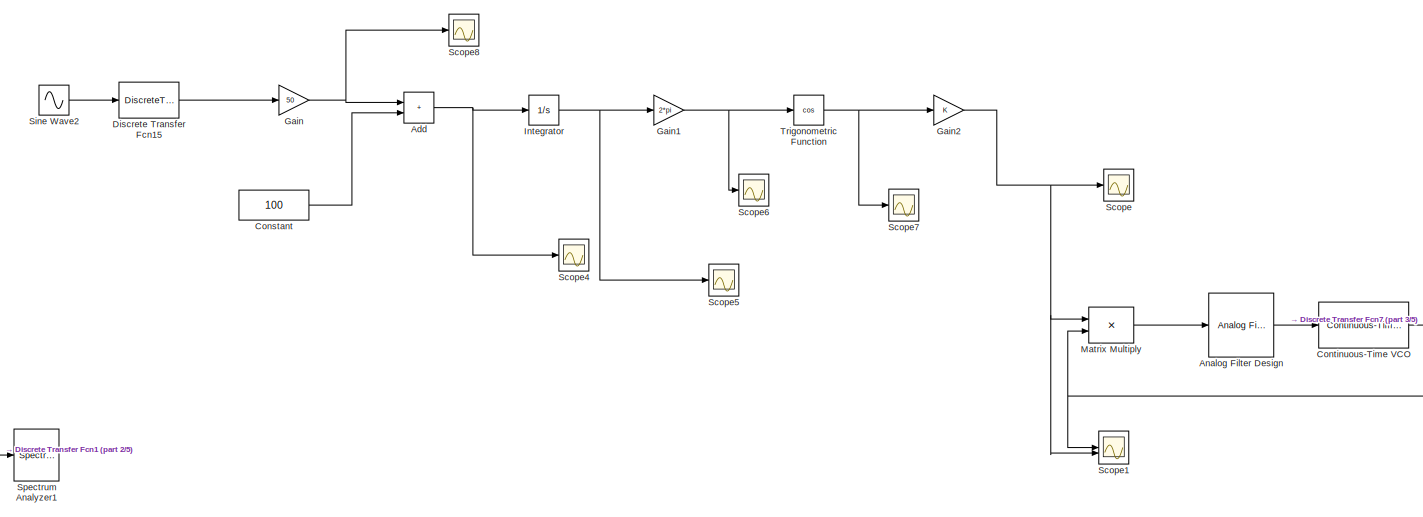
[diagram: root canvas - part 1/5, top center region]
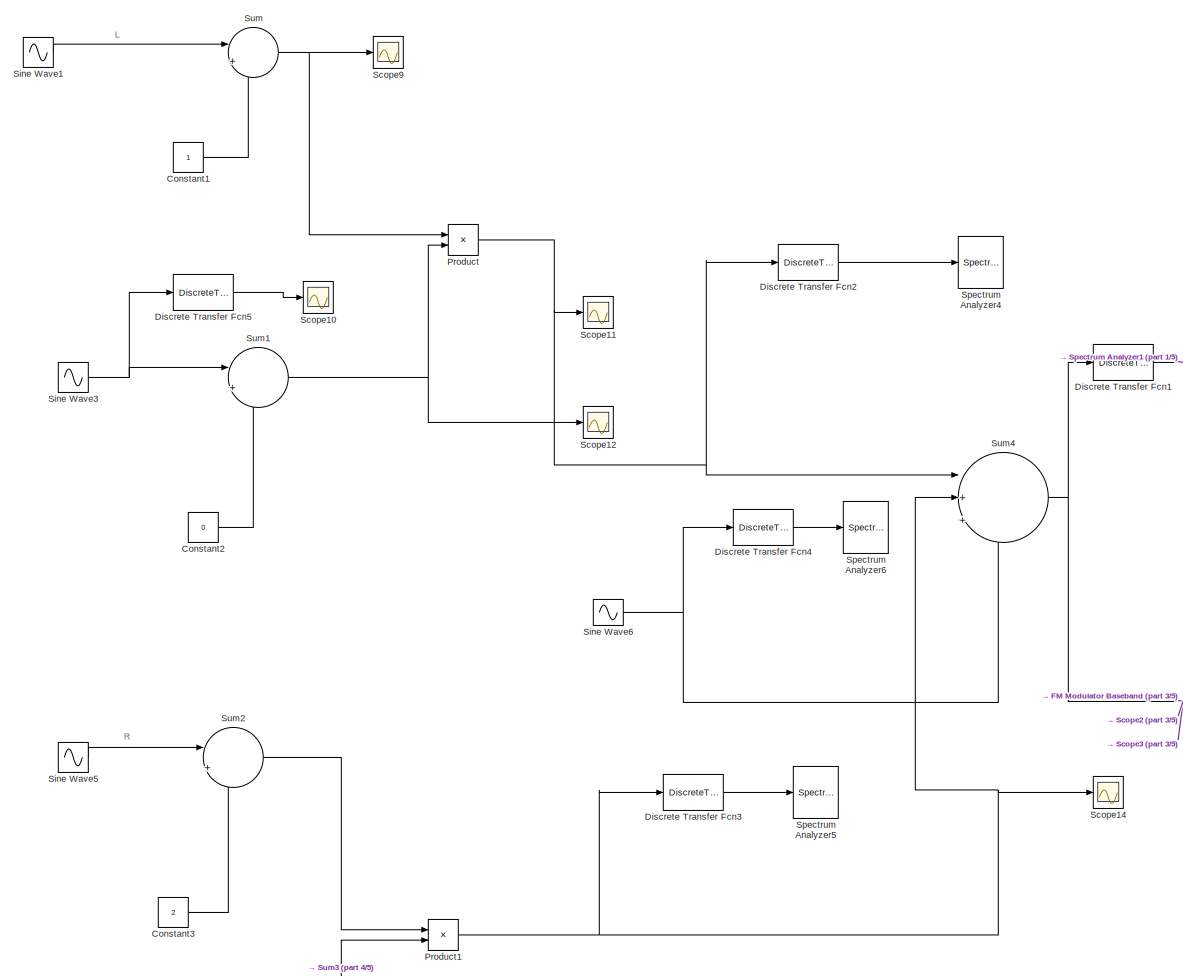
[diagram: root canvas - part 2/5, top left region]
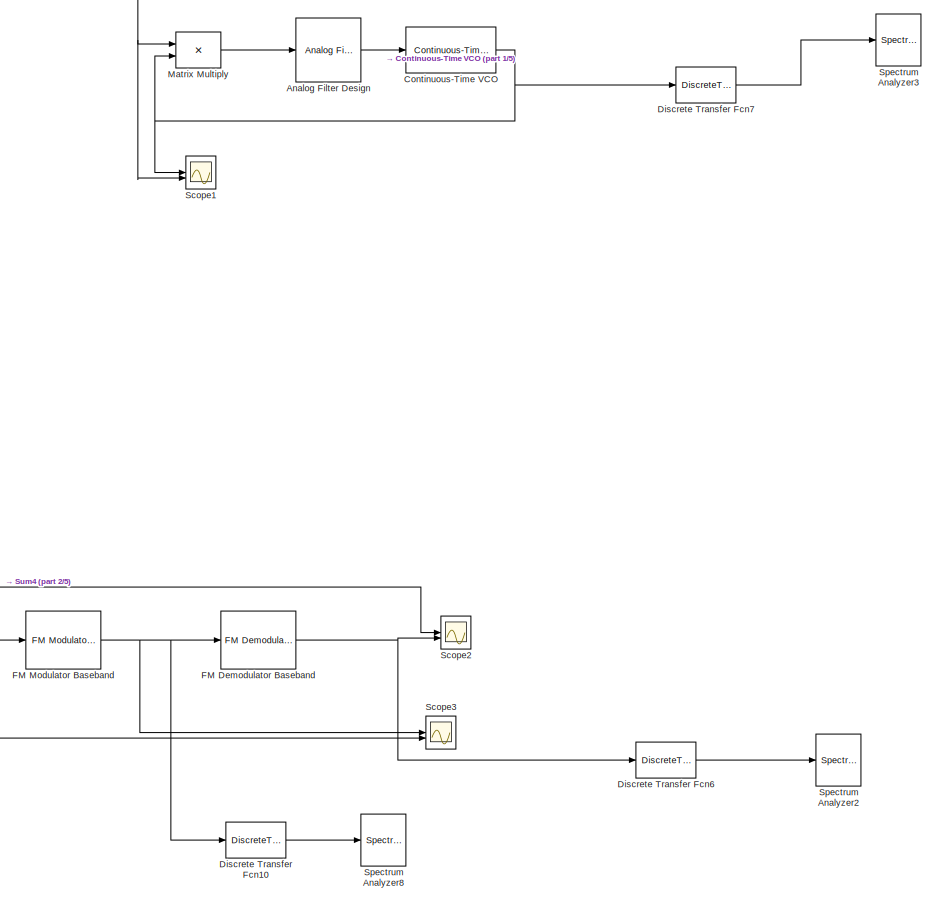
[diagram: root canvas - part 3/5, middle right region]
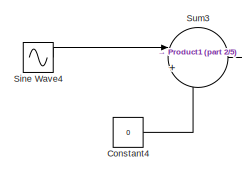
[diagram: root canvas - part 4/5, middle left region]
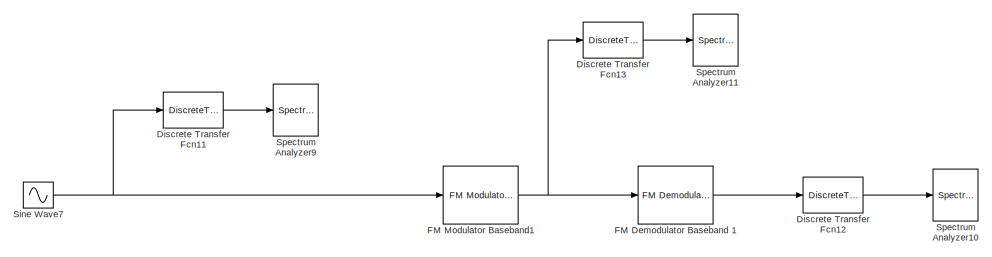
[diagram: root canvas - part 5/5, bottom right region]
MODEL slx_bea12ed6b8fe
KIND model
CONFIG AbsTol = auto
CONFIG EnableMultiTasking = off
CONFIG FixedStep = auto
CONFIG MaxStep = auto
CONFIG MinStep = auto
CONFIG RelTol = 1e-3
CONFIG SampleTimeConstraint = Unconstrained
CONFIG SolverName = VariableStepAuto
CONFIG StartTime = 0.0
CONFIG StopTime = 0.5
BLOCK [Sum] Add
  IconShape = rectangular
BLOCK [Reference] Analog Filter Design  REF=dspfdesign/Analog
Filter Design
  SourceBlock = dspfdesign/Analog\nFilter Design
  SourceType = Analog Filter Design
BLOCK [Constant] Constant
  Value = 100
  VectorParams1D = off
BLOCK [Constant] Constant1
BLOCK [Constant] Constant2
  Value = 0
BLOCK [Constant] Constant3
  Value = 2
BLOCK [Constant] Constant4
  Value = 0
BLOCK [Reference] Continuous-Time VCO  REF=commsynccomp2/Continuous-Time
VCO
  SourceBlock = commsynccomp2/Continuous-Time\nVCO
  SourceType = Continuous-Time VCO
BLOCK [DiscreteTransferFcn] Discrete Transfer Fcn1
  Denominator = [1]
  InputPortMap = u0
  SampleTime = 1/24e+6
BLOCK [DiscreteTransferFcn] Discrete Transfer Fcn10
  Denominator = [1]
  InputPortMap = u0
  SampleTime = 1/16e+6
BLOCK [DiscreteTransferFcn] Discrete Transfer Fcn11
  Denominator = [1]
  InputPortMap = u0
  SampleTime = 1/12e+6
BLOCK [DiscreteTransferFcn] Discrete Transfer Fcn12
  Denominator = [1]
  InputPortMap = u0
  SampleTime = 1/16e+6
BLOCK [DiscreteTransferFcn] Discrete Transfer Fcn13
  Denominator = [1]
  InputPortMap = u0
  SampleTime = 1/12e+6
BLOCK [DiscreteTransferFcn] Discrete Transfer Fcn15
  Denominator = [1]
  InputPortMap = u0
  SampleTime = 1/2*pi*100
BLOCK [DiscreteTransferFcn] Discrete Transfer Fcn2
  Denominator = [1]
  InputPortMap = u0
  SampleTime = 1/16e+6
BLOCK [DiscreteTransferFcn] Discrete Transfer Fcn3
  Denominator = [1]
  InputPortMap = u0
  SampleTime = 1/24e+6
BLOCK [DiscreteTransferFcn] Discrete Transfer Fcn4
  Denominator = [1]
  InputPortMap = u0
  SampleTime = 1/12e+6
BLOCK [DiscreteTransferFcn] Discrete Transfer Fcn5
  Denominator = [1]
  InputPortMap = u0
  SampleTime = 1/16e+6
BLOCK [DiscreteTransferFcn] Discrete Transfer Fcn6
  Denominator = [1]
  InputPortMap = u0
  SampleTime = 1/16e+6
BLOCK [DiscreteTransferFcn] Discrete Transfer Fcn7
  Denominator = [1]
  InputPortMap = u0
  SampleTime = 1/200
BLOCK [Reference] FM Demodulator Baseband   REF=commanabbnd3/FM
Demodulator
Baseband 
  SourceBlock = commanabbnd3/FM\nDemodulator\nBaseband
  SourceType = FM Demodulator Baseband
BLOCK [Reference] FM Demodulator Baseband 1  REF=commanabbnd3/FM
Demodulator
Baseband 
  SourceBlock = commanabbnd3/FM\nDemodulator\nBaseband
  SourceType = FM Demodulator Baseband
BLOCK [Reference] FM Modulator Baseband  REF=commanabbnd3/FM
Modulator
Baseband
  SourceBlock = commanabbnd3/FM\nModulator\nBaseband
  SourceType = FM Modulator Baseband
BLOCK [Reference] FM Modulator Baseband1  REF=commanabbnd3/FM
Modulator
Baseband
  SourceBlock = commanabbnd3/FM\nModulator\nBaseband
  SourceType = FM Modulator Baseband
BLOCK [Gain] Gain
  Gain = 50
BLOCK [Gain] Gain1
  Gain = 2*pi
BLOCK [Gain] Gain2
BLOCK [Integrator] Integrator
BLOCK [Product] Matrix Multiply
  Multiplication = Matrix(*)
BLOCK [Product] Product
BLOCK [Product] Product1
BLOCK [Scope] Scope
  Floating = off
  NumInputPorts = 1
  ScopeSpecificationString = Simulink.scopes.TimeScopeBlockCfg('CurrentConfiguration', extmgr.ConfigurationSet(extmgr.Configuration('Core','General UI',true),extmgr.Configuration('Core','Source UI',true),extmgr.Configuration('Sources','WiredSimulink',true),extmgr.Configuration('Visuals','Time Domain',true,'SerializedDisplays',{struct('MinYLimReal','-1.25','MaxYLimReal','1.25','YLabelReal','','MinYLimMag','0.00000','MaxYLimMag...<+1343ch>
BLOCK [Scope] Scope1
  Floating = off
  NumInputPorts = 2
  ScopeSpecificationString = Simulink.scopes.TimeScopeBlockCfg('CurrentConfiguration', extmgr.ConfigurationSet(extmgr.Configuration('Core','General UI',true),extmgr.Configuration('Core','Source UI',true),extmgr.Configuration('Sources','WiredSimulink',true,'DataLoggingVariableName','ScopeData1'),extmgr.Configuration('Visuals','Time Domain',true,'SerializedDisplays',{struct('MinYLimReal','-1.25','MaxYLimReal','1.25','YLabelReal...<+1399ch>
BLOCK [Scope] Scope10
  Floating = off
  NumInputPorts = 1
  ScopeSpecificationString = Simulink.scopes.TimeScopeBlockCfg('CurrentConfiguration', extmgr.ConfigurationSet(extmgr.Configuration('Core','General UI',true),extmgr.Configuration('Core','Source UI',true),extmgr.Configuration('Sources','WiredSimulink',true,'DataLoggingVariableName','ScopeData1'),extmgr.Configuration('Visuals','Time Domain',true,'SerializedDisplays',{struct('MinYLimReal','-1.25','MaxYLimReal','1.25','YLabelReal...<+1417ch>
BLOCK [Scope] Scope11
  Floating = off
  NumInputPorts = 1
  ScopeSpecificationString = Simulink.scopes.TimeScopeBlockCfg('CurrentConfiguration', extmgr.ConfigurationSet(extmgr.Configuration('Core','General UI',true),extmgr.Configuration('Core','Source UI',true),extmgr.Configuration('Sources','WiredSimulink',true,'DataLoggingVariableName','ScopeData2'),extmgr.Configuration('Visuals','Time Domain',true,'SerializedDisplays',{struct('MinYLimReal','-2.5','MaxYLimReal','2.5','YLabelReal',...<+1390ch>
BLOCK [Scope] Scope12
  Floating = off
  NumInputPorts = 1
  ScopeSpecificationString = Simulink.scopes.TimeScopeBlockCfg('CurrentConfiguration', extmgr.ConfigurationSet(extmgr.Configuration('Core','General UI',true),extmgr.Configuration('Core','Source UI',true),extmgr.Configuration('Sources','WiredSimulink',true,'DataLoggingVariableName','ScopeData3'),extmgr.Configuration('Visuals','Time Domain',true,'SerializedDisplays',{struct('MinYLimReal','-9.67988','MaxYLimReal','8.81549','YLab...<+1417ch>
BLOCK [Scope] Scope14
  Floating = off
  NumInputPorts = 1
  ScopeSpecificationString = Simulink.scopes.TimeScopeBlockCfg('CurrentConfiguration', extmgr.ConfigurationSet(extmgr.Configuration('Core','General UI',true),extmgr.Configuration('Core','Source UI',true),extmgr.Configuration('Sources','WiredSimulink',true,'DataLoggingVariableName','ScopeData5'),extmgr.Configuration('Visuals','Time Domain',true,'SerializedDisplays',{struct('MinYLimReal','-64.38624','MaxYLimReal','71.27468','YL...<+1392ch>
BLOCK [Scope] Scope2
  Floating = off
  NumInputPorts = 2
  ScopeSpecificationString = Simulink.scopes.TimeScopeBlockCfg('CurrentConfiguration', extmgr.ConfigurationSet(extmgr.Configuration('Core','General UI',true),extmgr.Configuration('Core','Source UI',true),extmgr.Configuration('Sources','WiredSimulink',true,'DataLoggingVariableName','ScopeData1'),extmgr.Configuration('Visuals','Time Domain',true,'SerializedDisplays',{struct('MinYLimReal','-1.2499','MaxYLimReal','1.2499','YLabel...<+1415ch>
BLOCK [Scope] Scope3
  Floating = off
  NumInputPorts = 2
  ScopeSpecificationString = Simulink.scopes.TimeScopeBlockCfg('CurrentConfiguration', extmgr.ConfigurationSet(extmgr.Configuration('Core','General UI',true),extmgr.Configuration('Core','Source UI',true),extmgr.Configuration('Sources','WiredSimulink',true,'DataLoggingVariableName','ScopeData2'),extmgr.Configuration('Visuals','Time Domain',true,'SerializedDisplays',{struct('MinYLimReal','-1.24991','MaxYLimReal','1.24999','YLab...<+1488ch>
BLOCK [Scope] Scope4
  Floating = off
  NumInputPorts = 1
  ScopeSpecificationString = Simulink.scopes.TimeScopeBlockCfg('CurrentConfiguration', extmgr.ConfigurationSet(extmgr.Configuration('Core','General UI',true),extmgr.Configuration('Core','Source UI',true),extmgr.Configuration('Sources','WiredSimulink',true,'DataLoggingVariableName','ScopeData3'),extmgr.Configuration('Visuals','Time Domain',true,'SerializedDisplays',{struct('MinYLimReal','95.875','MaxYLimReal','107.125','YLabel...<+1356ch>
BLOCK [Scope] Scope5
  Floating = off
  NumInputPorts = 1
  ScopeSpecificationString = Simulink.scopes.TimeScopeBlockCfg('CurrentConfiguration', extmgr.ConfigurationSet(extmgr.Configuration('Core','General UI',true),extmgr.Configuration('Core','Source UI',true),extmgr.Configuration('Sources','WiredSimulink',true,'DataLoggingVariableName','ScopeData4'),extmgr.Configuration('Visuals','Time Domain',true,'SerializedDisplays',{struct('MinYLimReal','18.76821','MaxYLimReal','19.58469','YLa...<+1418ch>
BLOCK [Scope] Scope6
  Floating = off
  NumInputPorts = 1
  ScopeSpecificationString = Simulink.scopes.TimeScopeBlockCfg('CurrentConfiguration', extmgr.ConfigurationSet(extmgr.Configuration('Core','General UI',true),extmgr.Configuration('Core','Source UI',true),extmgr.Configuration('Sources','WiredSimulink',true,'DataLoggingVariableName','ScopeData5'),extmgr.Configuration('Visuals','Time Domain',true,'SerializedDisplays',{struct('MinYLimReal','-0.67088','MaxYLimReal','6.03796','YLab...<+1364ch>
BLOCK [Scope] Scope7
  Floating = off
  NumInputPorts = 1
  ScopeSpecificationString = Simulink.scopes.TimeScopeBlockCfg('CurrentConfiguration', extmgr.ConfigurationSet(extmgr.Configuration('Core','General UI',true),extmgr.Configuration('Core','Source UI',true),extmgr.Configuration('Sources','WiredSimulink',true,'DataLoggingVariableName','ScopeData6'),extmgr.Configuration('Visuals','Time Domain',true,'SerializedDisplays',{struct('MinYLimReal','-1.25','MaxYLimReal','1.25','YLabelReal...<+1390ch>
BLOCK [Scope] Scope8
  Floating = off
  NumInputPorts = 1
  ScopeSpecificationString = Simulink.scopes.TimeScopeBlockCfg('CurrentConfiguration', extmgr.ConfigurationSet(extmgr.Configuration('Core','General UI',true),extmgr.Configuration('Core','Source UI',true),extmgr.Configuration('Sources','WiredSimulink',true,'DataLoggingVariableName','ScopeData7'),extmgr.Configuration('Visuals','Time Domain',true,'SerializedDisplays',{struct('MinYLimReal','-4.125','MaxYLimReal','7.125','YLabelRe...<+1351ch>
BLOCK [Scope] Scope9
  Floating = off
  NumInputPorts = 1
  ScopeSpecificationString = Simulink.scopes.TimeScopeBlockCfg('CurrentConfiguration', extmgr.ConfigurationSet(extmgr.Configuration('Core','General UI',true),extmgr.Configuration('Core','Source UI',true),extmgr.Configuration('Sources','WiredSimulink',true,'DataLoggingVariableName','ScopeData6','SampleTime','0'),extmgr.Configuration('Visuals','Time Domain',true,'SerializedDisplays',{struct('MinYLimReal','-1.61232','MaxYLimReal...<+1510ch>
BLOCK [Sin] Sine Wave1
  Frequency = 2*pi*5000
  Phase = pi/2
  SampleTime = 0
  VectorParams1D = off
BLOCK [Sin] Sine Wave2
  Frequency = 2*pi*50
  Phase = pi/2
  SampleTime = 0
  VectorParams1D = off
BLOCK [Sin] Sine Wave3
  Frequency = 2*pi*8e+6
  Phase = pi/2
  SampleTime = 0
  VectorParams1D = off
BLOCK [Sin] Sine Wave4
  Frequency = 2*pi*12e+6
  Phase = pi/2
  SampleTime = 0
  VectorParams1D = off
BLOCK [Sin] Sine Wave5
  Frequency = 2*pi*4000
  Phase = pi/2
  SampleTime = 0
  VectorParams1D = off
BLOCK [Sin] Sine Wave6
  Amplitude = 2
  Frequency = 2*pi*6e+6
  Phase = pi/2
  SampleTime = 0
  VectorParams1D = off
BLOCK [Sin] Sine Wave7
  Amplitude = 2
  Frequency = 2*pi*6e+6
  Phase = pi/2
  SampleTime = 0
  VectorParams1D = off
BLOCK [SpectrumAnalyzer] Spectrum Analyzer1
  AveragingMethod = Exponential
  AxesScaling = Manual
  ChannelNames = [""]
  DefaultConfigurationName = spbscopes.SpectrumAnalyzerBlockCfg
  GraphicalSettings = {"GraphicalSettings":{"Style":{"BackgroundColor":[0.1568627450980392,0.1568627450980392,0.1568627450980392],"AxesColor":[0,0,0],"LabelsColor":[0.6862745098039216,0.6862745098039216,0.6862745098039216],"PreserveColors":false,"Visible":[true],"LineStyle":["-"],"LineColor":[[1,1,0.06666666666666667]],"LineWidth":[1.5],"Marker":["none"],"FontSize":"small"},"Cursors":{"Enabled":false,"XLocation":[2,8],...<+831ch>  <repeated x9 — deduplicated; at blocks: Spectrum Analyzer1, Spectrum Analyzer10, Spectrum Analyzer11, Spectrum Analyzer2, Spectrum Analyzer4, Spectrum Analyzer5, Spectrum Analyzer6, Spectrum Analyzer8, Spectrum Analyzer9>
  OpenAtSimulationStart = off
  ScopeFrameLocation = window
  ScopeSpecificationString = spbscopes.SpectrumAnalyzerBlockCfg('CurrentConfiguration', extmgr.ConfigurationSet(extmgr.Configuration('Core','General UI',true,'FigureColor',[0.15686     0.15686     0.15686]),extmgr.Configuration('Visuals','Spectrum',true,'Title','','YLabel','','MinYLim','-3.0855','MaxYLim','27.7695','Legend',true,'AxesProperties',struct('XGrid',{'on','on'},'YGrid',{'on','on'},'ZGrid',{'on','on'},'Color',{[0  0...<+2385ch>
  SelectedToolstripTab = spectrumAnalyzerToolstrip.spectrumTab
  ShowLegend = on
  SpectrumUnits = Watts
  WasSavedAsWebScope = on
  WindowPosition = [1.000000,41.000000,1536.000000,801.000000,]
  YLimits = [-0.51276374,4.61487369]
BLOCK [SpectrumAnalyzer] Spectrum Analyzer10
  AveragingMethod = Exponential
  AxesScaling = Manual
  ChannelNames = [""]
  DefaultConfigurationName = spbscopes.SpectrumAnalyzerBlockCfg
  OpenAtSimulationStart = off
  ScopeFrameLocation = window
  ScopeSpecificationString = spbscopes.SpectrumAnalyzerBlockCfg('CurrentConfiguration', extmgr.ConfigurationSet(extmgr.Configuration('Core','General UI',true,'FigureColor',[0.15686     0.15686     0.15686]),extmgr.Configuration('Visuals','Spectrum',true,'Title','','YLabel','','MinYLim','-43.0092','MaxYLim','46.9194','Legend',false,'AxesProperties',struct('XGrid',{'on','on'},'YGrid',{'on','on'},'ZGrid',{'on','on'},'Color',{[0 ...<+2383ch>  <repeated x3 — deduplicated; at blocks: Spectrum Analyzer10, Spectrum Analyzer2, Spectrum Analyzer8>
  Visible = on
  WasSavedAsWebScope = on
  WindowPosition = [770.000000,42.000000,766.000000,793.000000,]
  YLimits = [-73.15760482,41.44536822]
BLOCK [SpectrumAnalyzer] Spectrum Analyzer11
  AveragingMethod = Exponential
  AxesScaling = Manual
  ChannelNames = [""]
  DefaultConfigurationName = spbscopes.SpectrumAnalyzerBlockCfg
  OpenAtSimulationStart = off
  ScopeFrameLocation = window
  ScopeSpecificationString = spbscopes.SpectrumAnalyzerBlockCfg('CurrentConfiguration', extmgr.ConfigurationSet(extmgr.Configuration('Core','General UI',true,'FigureColor',[0.15686     0.15686     0.15686]),extmgr.Configuration('Visuals','Spectrum',true,'Title','','YLabel','','MinYLim','-72.2744','MaxYLim','63.5295','Legend',false,'AxesProperties',struct('XGrid',{'on','on'},'YGrid',{'on','on'},'ZGrid',{'on','on'},'Color',{[0 ...<+2385ch>  <repeated x3 — deduplicated; at blocks: Spectrum Analyzer11, Spectrum Analyzer6, Spectrum Analyzer9>
  Visible = on
  WasSavedAsWebScope = on
  WindowPosition = [2.000000,42.000000,766.000000,793.000000,]
  YLimits = [-74.13776805,40.75747711]
BLOCK [SpectrumAnalyzer] Spectrum Analyzer2
  AveragingMethod = Exponential
  AxesScaling = Manual
  ChannelNames = [""]
  DefaultConfigurationName = spbscopes.SpectrumAnalyzerBlockCfg
  OpenAtSimulationStart = off
  ScopeFrameLocation = window
  Visible = on
  WasSavedAsWebScope = on
  WindowPosition = [1.000000,41.000000,1536.000000,801.000000,]
  YLimits = [-221.40437999,59.98570956]
BLOCK [SpectrumAnalyzer] Spectrum Analyzer3
  AveragingMethod = Exponential
  AxesScaling = Manual
  ChannelNames = [""]
  DefaultConfigurationName = spbscopes.SpectrumAnalyzerBlockCfg
  GraphicalSettings = {"GraphicalSettings":{"Style":{"BackgroundColor":[0.1568627450980392,0.1568627450980392,0.1568627450980392],"AxesColor":[0,0,0],"LabelsColor":[0.6862745098039216,0.6862745098039216,0.6862745098039216],"PreserveColors":false,"Visible":[true,true,true,true,true,true,true],"LineStyle":["-","-","-","-","-","-","-"],"LineColor":[[1,1,0.06666666666666667],[0.07450980392156863,0.6235294117647059,1],[1,0....<+1210ch>
  OpenAtSimulationStart = off
  ScopeFrameLocation = window
  ScopeSpecificationString = spbscopes.SpectrumAnalyzerBlockCfg('CurrentConfiguration', extmgr.ConfigurationSet(extmgr.Configuration('Core','General UI',true,'FigureColor',[0.15686     0.15686     0.15686]),extmgr.Configuration('Visuals','Spectrum',true,'Title','','YLabel','','MinYLim','-123.0579','MaxYLim','45.832','Legend',false,'AxesProperties',struct('XGrid',{'on','on'},'YGrid',{'on','on'},'ZGrid',{'on','on'},'Color',{[0 ...<+2383ch>
  SelectedToolstripTab = spectrumAnalyzerToolstrip.spectrumTab
  SpectrumUnits = Watts
  WasSavedAsWebScope = on
  WindowPosition = [1.000000,41.000000,1536.000000,801.000000,]
  YLimits = [-123.17973841,46.92856517]
BLOCK [SpectrumAnalyzer] Spectrum Analyzer4
  AveragingMethod = Exponential
  AxesScaling = Manual
  ChannelNames = [""]
  DefaultConfigurationName = spbscopes.SpectrumAnalyzerBlockCfg
  OpenAtSimulationStart = off
  ScopeFrameLocation = window
  ScopeSpecificationString = spbscopes.SpectrumAnalyzerBlockCfg('CurrentConfiguration', extmgr.ConfigurationSet(extmgr.Configuration('Core','General UI',true,'FigureColor',[0.15686     0.15686     0.15686]),extmgr.Configuration('Visuals','Spectrum',true,'Title','','YLabel','','MinYLim','-146.4554','MaxYLim','51.2224','Legend',false,'AxesProperties',struct('XGrid',{'on','on'},'YGrid',{'on','on'},'ZGrid',{'on','on'},'Color',{[0...<+2384ch>
  WasSavedAsWebScope = on
  WindowPosition = [1.000000,1.000000,1536.000000,841.000000,]
  YLimits = [-149.30305087,57.1601735]
BLOCK [SpectrumAnalyzer] Spectrum Analyzer5
  AveragingMethod = Exponential
  AxesScaling = Manual
  ChannelNames = [""]
  DefaultConfigurationName = spbscopes.SpectrumAnalyzerBlockCfg
  OpenAtSimulationStart = off
  ScopeFrameLocation = window
  ScopeSpecificationString = spbscopes.SpectrumAnalyzerBlockCfg('CurrentConfiguration', extmgr.ConfigurationSet(extmgr.Configuration('Core','General UI',true,'FigureColor',[0.15686     0.15686     0.15686]),extmgr.Configuration('Visuals','Spectrum',true,'Title','','YLabel','','MinYLim','-227.7878','MaxYLim','61.1032','Legend',false,'AxesProperties',struct('XGrid',{'on','on'},'YGrid',{'on','on'},'ZGrid',{'on','on'},'Color',{[0...<+2386ch>
  WasSavedAsWebScope = on
  WindowPosition = [368.000000,182.000000,800.000000,500.000000,]
BLOCK [SpectrumAnalyzer] Spectrum Analyzer6
  AveragingMethod = Exponential
  AxesScaling = Manual
  ChannelNames = [""]
  DefaultConfigurationName = spbscopes.SpectrumAnalyzerBlockCfg
  OpenAtSimulationStart = off
  ScopeFrameLocation = window
  WasSavedAsWebScope = on
  WindowPosition = [368.000000,182.000000,800.000000,500.000000,]
BLOCK [SpectrumAnalyzer] Spectrum Analyzer8
  AveragingMethod = Exponential
  AxesScaling = Manual
  ChannelNames = [""]
  DefaultConfigurationName = spbscopes.SpectrumAnalyzerBlockCfg
  OpenAtSimulationStart = off
  ScopeFrameLocation = window
  WasSavedAsWebScope = on
  WindowPosition = [2.000000,42.000000,1534.000000,793.000000,]
  YLimits = [-117.39798875,29.52252221]
BLOCK [SpectrumAnalyzer] Spectrum Analyzer9
  AveragingMethod = Exponential
  AxesScaling = Manual
  ChannelNames = [""]
  DefaultConfigurationName = spbscopes.SpectrumAnalyzerBlockCfg
  OpenAtSimulationStart = off
  ScopeFrameLocation = window
  WasSavedAsWebScope = on
  WindowPosition = [90.000000,154.000000,800.000000,500.000000,]
BLOCK [Sum] Sum
  Inputs = |++
BLOCK [Sum] Sum1
  Inputs = |++
BLOCK [Sum] Sum2
  Inputs = |++
BLOCK [Sum] Sum3
  Inputs = |++
BLOCK [Sum] Sum4
  Inputs = |+++
BLOCK [Trigonometry] Trigonometric Function
  Operator = cos
ANNOTATION (root): L
ANNOTATION (root): R
NET Add:1 -> Integrator:1, Scope4:1
LINE Analog Filter Design:1 -> Continuous-Time VCO:1
LINE Constant1:1 -> Sum:2
LINE Constant2:1 -> Sum1:2
LINE Constant3:1 -> Sum2:2
LINE Constant4:1 -> Sum3:2
LINE Constant:1 -> Add:2
NET Continuous-Time VCO:1 -> Discrete Transfer Fcn7:1, Matrix Multiply:2, Scope1:1
LINE Discrete Transfer Fcn10:1 -> Spectrum Analyzer8:1
LINE Discrete Transfer Fcn11:1 -> Spectrum Analyzer9:1
LINE Discrete Transfer Fcn12:1 -> Spectrum Analyzer10:1
LINE Discrete Transfer Fcn13:1 -> Spectrum Analyzer11:1
LINE Discrete Transfer Fcn15:1 -> Gain:1
LINE Discrete Transfer Fcn1:1 -> Spectrum Analyzer1:1
LINE Discrete Transfer Fcn2:1 -> Spectrum Analyzer4:1
LINE Discrete Transfer Fcn3:1 -> Spectrum Analyzer5:1
LINE Discrete Transfer Fcn4:1 -> Spectrum Analyzer6:1
LINE Discrete Transfer Fcn5:1 -> Scope10:1
LINE Discrete Transfer Fcn6:1 -> Spectrum Analyzer2:1
LINE Discrete Transfer Fcn7:1 -> Spectrum Analyzer3:1
LINE FM Demodulator Baseband 1:1 -> Discrete Transfer Fcn12:1
NET FM Demodulator Baseband :1 -> Discrete Transfer Fcn6:1, Scope2:2
NET FM Modulator Baseband1:1 -> Discrete Transfer Fcn13:1, FM Demodulator Baseband 1:1
NET FM Modulator Baseband:1 -> Discrete Transfer Fcn10:1, FM Demodulator Baseband :1, Scope3:1
NET Gain1:1 -> Scope6:1, Trigonometric Function:1
NET Gain2:1 -> Matrix Multiply:1, Scope1:2, Scope:1
NET Gain:1 -> Add:1, Scope8:1
NET Integrator:1 -> Gain1:1, Scope5:1
LINE Matrix Multiply:1 -> Analog Filter Design:1
NET Product1:1 -> Discrete Transfer Fcn3:1, Scope14:1, Sum4:2
NET Product:1 -> Discrete Transfer Fcn2:1, Scope11:1, Sum4:1
LINE Sine Wave1:1 -> Sum:1
LINE Sine Wave2:1 -> Discrete Transfer Fcn15:1
NET Sine Wave3:1 -> Discrete Transfer Fcn5:1, Sum1:1
LINE Sine Wave4:1 -> Sum3:1
LINE Sine Wave5:1 -> Sum2:1
NET Sine Wave6:1 -> Discrete Transfer Fcn4:1, Sum4:3
NET Sine Wave7:1 -> Discrete Transfer Fcn11:1, FM Modulator Baseband1:1
NET Sum1:1 -> Product:2, Scope12:1
LINE Sum2:1 -> Product1:1
LINE Sum3:1 -> Product1:2
NET Sum4:1 -> Discrete Transfer Fcn1:1, FM Modulator Baseband:1, Scope2:1, Scope3:2
NET Sum:1 -> Product:1, Scope9:1
NET Trigonometric Function:1 -> Gain2:1, Scope7:1
note: NET lines group one-source signal fan-out (src -> all destinations, sorted); 1:1 wires keep LINE
